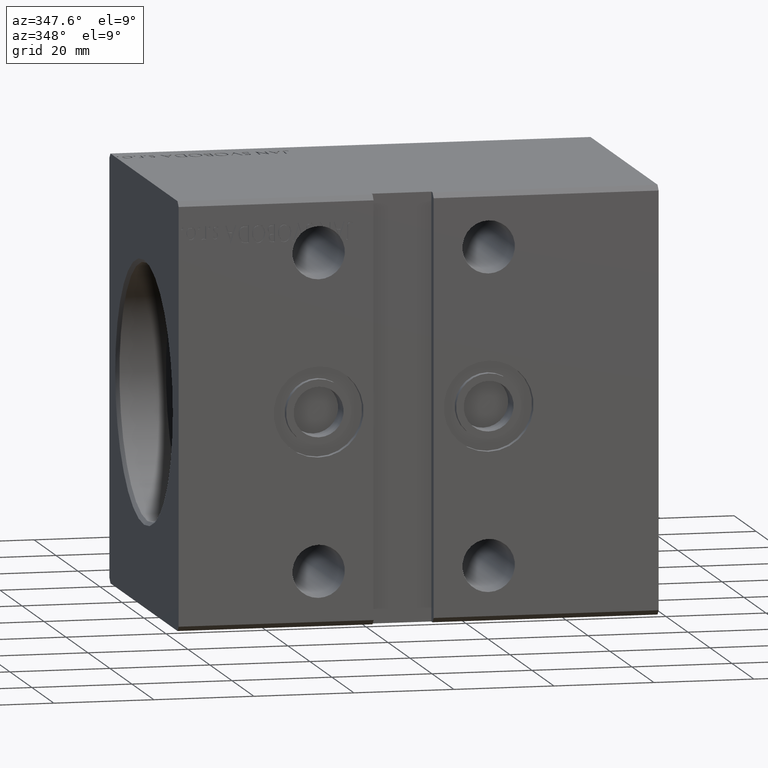
[diagram: clean part render]
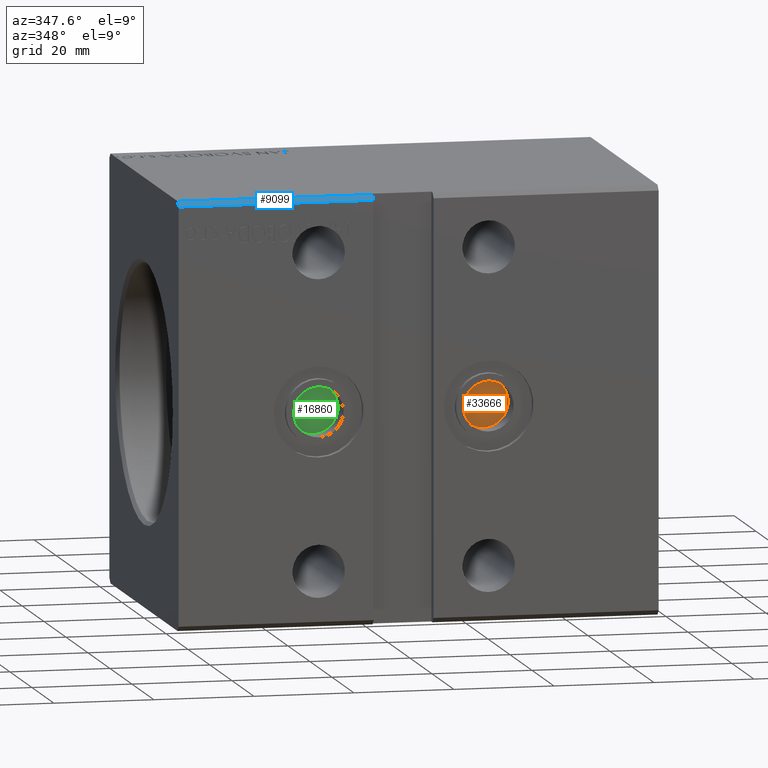
[diagram: same view with three faces highlighted in distinct colors, each labeled with its STEP entity id]
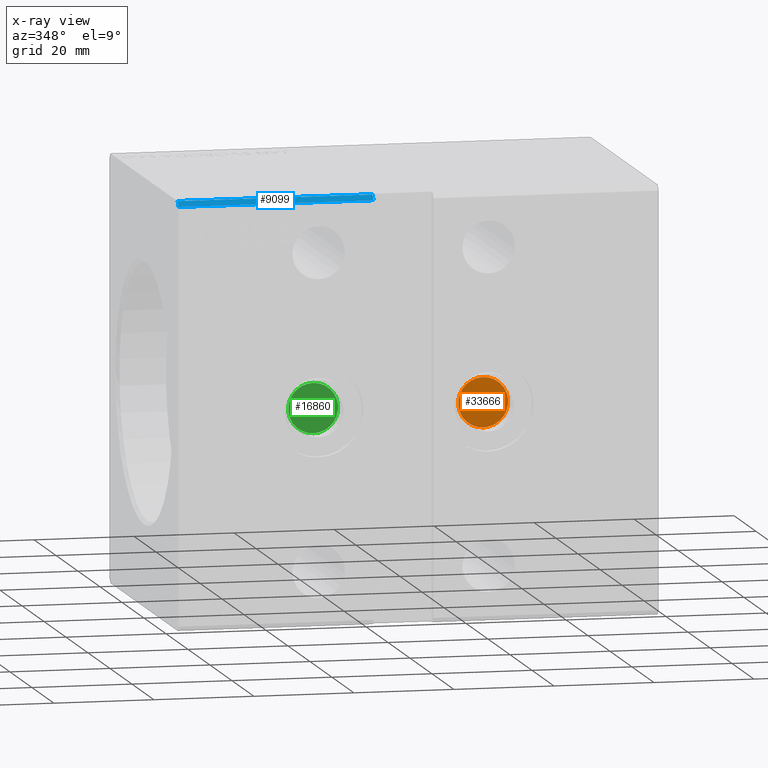
[diagram: x-ray of the same camera — body ghosted, the three highlighted faces saturated]
A machine part, auxiliary view with three faces highlighted in distinct colors.
The next image is the same camera in x-ray (body ghosted, the three faces saturated) — at least one of them is partly hidden behind the body in this view.
Their STEP definitions:

[orange] entity #33666 — the highlighted planar face has unit normal (0, -1, -0).
#2578 = CARTESIAN_POINT ( 'NONE',  ( 62.00000000000000711, -26.50000000000000000, -2.499741854111495244E-15 ) ) ;
#2787 = DIRECTION ( 'NONE',  ( 0.000000000000000000, -1.000000000000000000, -5.507058653894625853E-17 ) ) ;
#3537 = VERTEX_POINT ( 'NONE', #19433 ) ;
#5366 = VERTEX_POINT ( 'NONE', #22901 ) ;
#7112 = CIRCLE ( 'NONE', #10365, 4.999999999999997335 ) ;
#10365 = AXIS2_PLACEMENT_3D ( 'NONE', #2578, #2787, #33416 ) ;
#11750 = DIRECTION ( 'NONE',  ( 0.000000000000000000, 5.507058653894625853E-17, -1.000000000000000000 ) ) ;
#12608 = AXIS2_PLACEMENT_3D ( 'NONE', #40527, #15663, #11750 ) ;
#15049 = FACE_OUTER_BOUND ( 'NONE', #36870, .T. ) ;
#15663 = DIRECTION ( 'NONE',  ( 0.000000000000000000, -1.000000000000000000, -5.507058653894625853E-17 ) ) ;
#16539 = EDGE_CURVE ( 'NONE', #5366, #3537, #7112, .T. ) ;
#17926 = AXIS2_PLACEMENT_3D ( 'NONE', #19097, #37031, #28941 ) ;
#19097 = CARTESIAN_POINT ( 'NONE',  ( 62.00000000000000711, -26.50000000000000000, -2.499741854111495244E-15 ) ) ;
#19433 = CARTESIAN_POINT ( 'NONE',  ( 62.00000000000000711, -26.50000000000000000, -5.000000000000000000 ) ) ;
#21210 = CIRCLE ( 'NONE', #17926, 4.999999999999997335 ) ;
#22901 = CARTESIAN_POINT ( 'NONE',  ( 62.00000000000000711, -26.50000000000000000, 4.999999999999994671 ) ) ;
#23407 = ORIENTED_EDGE ( 'NONE', *, *, #39160, .T. ) ;
#28941 = DIRECTION ( 'NONE',  ( 0.000000000000000000, 0.000000000000000000, -1.000000000000000000 ) ) ;
#33416 = DIRECTION ( 'NONE',  ( 0.000000000000000000, 0.000000000000000000, -1.000000000000000000 ) ) ;
#33666 = ADVANCED_FACE ( 'NONE', ( #15049 ), #39915, .T. ) ;
#36870 = EDGE_LOOP ( 'NONE', ( #23407, #37775 ) ) ;
#37031 = DIRECTION ( 'NONE',  ( 0.000000000000000000, -1.000000000000000000, -5.507058653894625853E-17 ) ) ;
#37775 = ORIENTED_EDGE ( 'NONE', *, *, #16539, .T. ) ;
#39160 = EDGE_CURVE ( 'NONE', #3537, #5366, #21210, .T. ) ;
#39915 = PLANE ( 'NONE',  #12608 ) ;
#40527 = CARTESIAN_POINT ( 'NONE',  ( 62.00000000000000711, -26.50000000000000000, -2.499741854111495244E-15 ) ) ;

[blue] entity #9099 — the highlighted planar face has unit normal (0, 0.7071, -0.7071).
#467 = FACE_OUTER_BOUND ( 'NONE', #17936, .T. ) ;
#3615 = EDGE_CURVE ( 'NONE', #30103, #15466, #29482, .T. ) ;
#4217 = DIRECTION ( 'NONE',  ( -1.000000000000000000, -0.000000000000000000, -0.000000000000000000 ) ) ;
#4808 = VERTEX_POINT ( 'NONE', #30556 ) ;
#6329 = DIRECTION ( 'NONE',  ( -1.000000000000000000, -0.000000000000000000, -0.000000000000000000 ) ) ;
#6351 = EDGE_CURVE ( 'NONE', #31251, #30103, #15876, .T. ) ;
#6741 = CARTESIAN_POINT ( 'NONE',  ( 96.00000000000000000, -31.50000000000000000, 41.49999999999999289 ) ) ;
#6824 = CARTESIAN_POINT ( 'NONE',  ( 39.00000000000000000, -30.50000000000000711, 42.49999999999998579 ) ) ;
#7288 = VECTOR ( 'NONE', #4217, 1000.000000000000000 ) ;
#9099 = ADVANCED_FACE ( 'NONE', ( #467 ), #38700, .F. ) ;
#9406 = DIRECTION ( 'NONE',  ( 0.000000000000000000, -0.7071067811865462405, -0.7071067811865489050 ) ) ;
#10136 = DIRECTION ( 'NONE',  ( 0.000000000000000000, 0.7071067811865462405, 0.7071067811865487940 ) ) ;
#10336 = CARTESIAN_POINT ( 'NONE',  ( 96.00000000000000000, -30.50000000000000355, 42.49999999999999289 ) ) ;
#11947 = EDGE_CURVE ( 'NONE', #15466, #4808, #13306, .T. ) ;
#13221 = DIRECTION ( 'NONE',  ( 0.000000000000000000, 0.7071067811865487940, -0.7071067811865462405 ) ) ;
#13306 = LINE ( 'NONE', #32212, #32595 ) ;
#13519 = CARTESIAN_POINT ( 'NONE',  ( 39.00000000000000000, -31.50000000000000000, 41.49999999999999289 ) ) ;
#15466 = VERTEX_POINT ( 'NONE', #32458 ) ;
#15876 = LINE ( 'NONE', #6824, #33499 ) ;
#17936 = EDGE_LOOP ( 'NONE', ( #26890, #19779, #28104, #31242 ) ) ;
#19372 = DIRECTION ( 'NONE',  ( -1.154479749032189471E-16, 0.7071067811865463515, 0.7071067811865487940 ) ) ;
#19779 = ORIENTED_EDGE ( 'NONE', *, *, #6351, .T. ) ;
#20542 = VECTOR ( 'NONE', #6329, 1000.000000000000000 ) ;
#26890 = ORIENTED_EDGE ( 'NONE', *, *, #38256, .F. ) ;
#28104 = ORIENTED_EDGE ( 'NONE', *, *, #3615, .T. ) ;
#29482 = LINE ( 'NONE', #32766, #7288 ) ;
#30103 = VERTEX_POINT ( 'NONE', #39933 ) ;
#30556 = CARTESIAN_POINT ( 'NONE',  ( 0.000000000000000000, -31.50000000000000000, 41.49999999999999289 ) ) ;
#31242 = ORIENTED_EDGE ( 'NONE', *, *, #11947, .T. ) ;
#31251 = VERTEX_POINT ( 'NONE', #13519 ) ;
#31987 = AXIS2_PLACEMENT_3D ( 'NONE', #10336, #13221, #10136 ) ;
#32212 = CARTESIAN_POINT ( 'NONE',  ( 0.000000000000000000, -30.50000000000000355, 42.49999999999999289 ) ) ;
#32458 = CARTESIAN_POINT ( 'NONE',  ( 0.000000000000000000, -30.50000000000000355, 42.49999999999999289 ) ) ;
#32595 = VECTOR ( 'NONE', #9406, 999.9999999999998863 ) ;
#32766 = CARTESIAN_POINT ( 'NONE',  ( 96.00000000000000000, -30.50000000000000355, 42.49999999999999289 ) ) ;
#33499 = VECTOR ( 'NONE', #19372, 1000.000000000000000 ) ;
#34490 = LINE ( 'NONE', #6741, #20542 ) ;
#38256 = EDGE_CURVE ( 'NONE', #31251, #4808, #34490, .T. ) ;
#38700 = PLANE ( 'NONE',  #31987 ) ;
#39933 = CARTESIAN_POINT ( 'NONE',  ( 39.00000000000000000, -30.50000000000000355, 42.49999999999999289 ) ) ;

[green] entity #16860 — the highlighted planar face has unit normal (0, -1, -0).
#1404 = AXIS2_PLACEMENT_3D ( 'NONE', #34976, #22653, #15868 ) ;
#2362 = AXIS2_PLACEMENT_3D ( 'NONE', #24802, #39810, #24406 ) ;
#5573 = EDGE_CURVE ( 'NONE', #10220, #22052, #13887, .T. ) ;
#6963 = CIRCLE ( 'NONE', #2362, 4.999999999999997335 ) ;
#9431 = CARTESIAN_POINT ( 'NONE',  ( 28.00000000000000355, -26.50000000000000000, -5.000000000000004441 ) ) ;
#10220 = VERTEX_POINT ( 'NONE', #9431 ) ;
#10622 = EDGE_CURVE ( 'NONE', #22052, #10220, #6963, .T. ) ;
#11567 = DIRECTION ( 'NONE',  ( 0.000000000000000000, 5.507058653894625853E-17, -1.000000000000000000 ) ) ;
#11979 = CARTESIAN_POINT ( 'NONE',  ( 28.00000000000000355, -26.50000000000000000, -6.663540971212496592E-15 ) ) ;
#13887 = CIRCLE ( 'NONE', #1404, 4.999999999999997335 ) ;
#14345 = AXIS2_PLACEMENT_3D ( 'NONE', #11979, #31096, #11567 ) ;
#15868 = DIRECTION ( 'NONE',  ( 0.000000000000000000, 0.000000000000000000, -1.000000000000000000 ) ) ;
#16860 = ADVANCED_FACE ( 'NONE', ( #27603 ), #17962, .T. ) ;
#17962 = PLANE ( 'NONE',  #14345 ) ;
#22052 = VERTEX_POINT ( 'NONE', #29987 ) ;
#22653 = DIRECTION ( 'NONE',  ( 0.000000000000000000, -1.000000000000000000, -5.507058653894625853E-17 ) ) ;
#24406 = DIRECTION ( 'NONE',  ( 0.000000000000000000, 0.000000000000000000, -1.000000000000000000 ) ) ;
#24802 = CARTESIAN_POINT ( 'NONE',  ( 28.00000000000000355, -26.50000000000000000, -6.663540971212496592E-15 ) ) ;
#27603 = FACE_OUTER_BOUND ( 'NONE', #27840, .T. ) ;
#27840 = EDGE_LOOP ( 'NONE', ( #27914, #36223 ) ) ;
#27914 = ORIENTED_EDGE ( 'NONE', *, *, #5573, .T. ) ;
#29987 = CARTESIAN_POINT ( 'NONE',  ( 28.00000000000000355, -26.50000000000000000, 4.999999999999990230 ) ) ;
#31096 = DIRECTION ( 'NONE',  ( 0.000000000000000000, -1.000000000000000000, -5.507058653894625853E-17 ) ) ;
#34976 = CARTESIAN_POINT ( 'NONE',  ( 28.00000000000000355, -26.50000000000000000, -6.663540971212496592E-15 ) ) ;
#36223 = ORIENTED_EDGE ( 'NONE', *, *, #10622, .T. ) ;
#39810 = DIRECTION ( 'NONE',  ( 0.000000000000000000, -1.000000000000000000, -5.507058653894625853E-17 ) ) ;